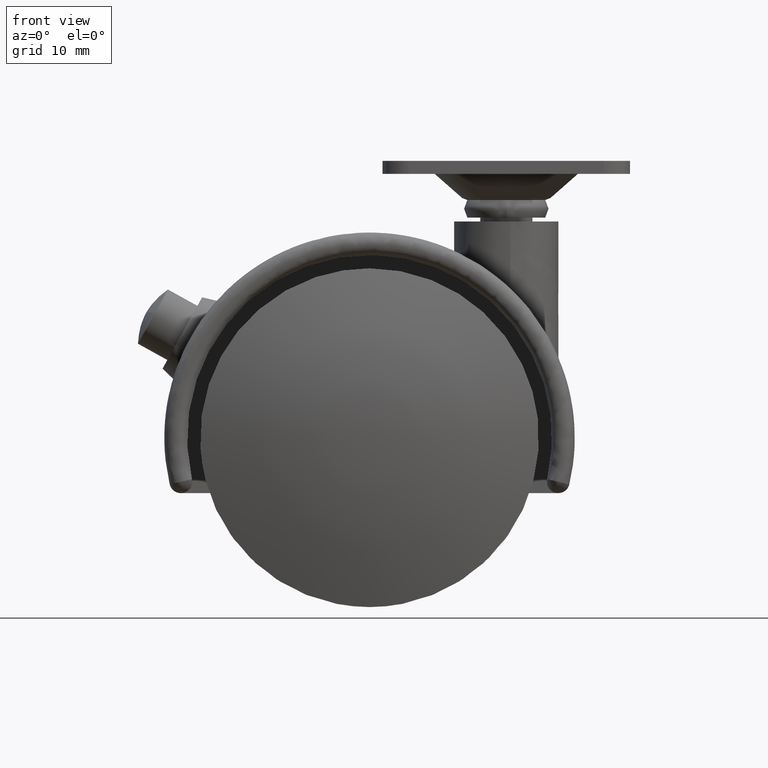
[diagram: clean part render]
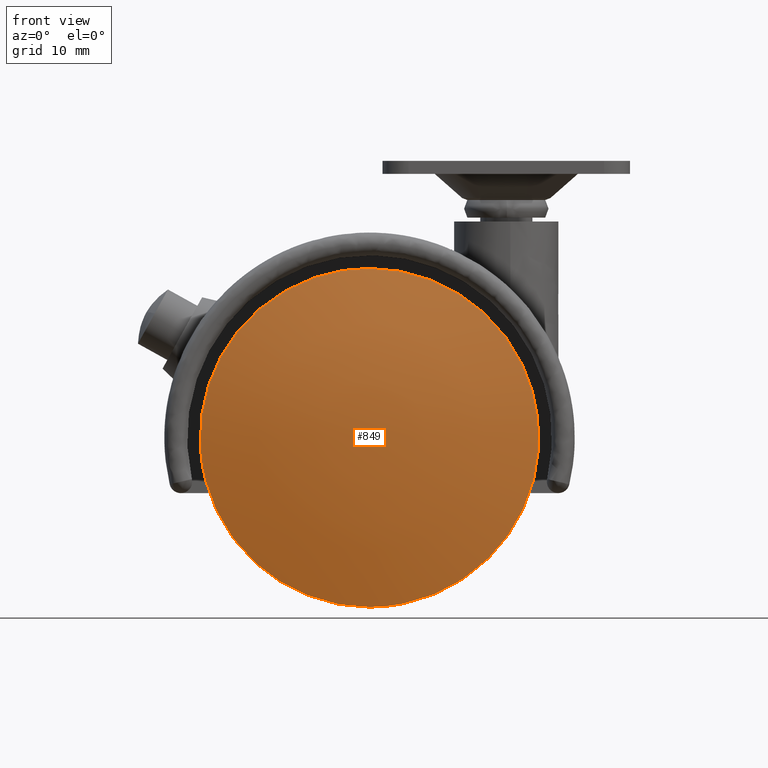
[diagram: same view with one face highlighted and labeled with its STEP entity id]
A machine part, front view. The second image highlights one B-rep face of the part: STEP entity #849.
In plain terms, the highlighted face is a freeform B-spline surface patch.
Its self-contained STEP definition (entity closure, byte-faithful):
#252=CARTESIAN_POINT('',(25.818250716227940,-19.100000010721399,3.068864603291616));
#253=VERTEX_POINT('',#252);
#254=CARTESIAN_POINT('',(0.0,-19.100000010721249,-26.0));
#255=VERTEX_POINT('',#254);
#256=CARTESIAN_POINT('',(25.818250716227940,-19.100000010721402,3.068864603291616));
#257=CARTESIAN_POINT('',(26.000000000000004,-19.100000010721246,1.539814227279839));
#258=CARTESIAN_POINT('',(26.0,-19.100000010721249,0.0));
#259=CARTESIAN_POINT('',(26.000000000000007,-19.100000010721242,-26.000000000000007));
#260=CARTESIAN_POINT('',(0.0,-19.100000010721249,-26.0));
#268=(BOUNDED_CURVE()B_SPLINE_CURVE(2,(#256,#257,#258,#259,#260),.UNSPECIFIED.,.F.,.U.)B_SPLINE_CURVE_WITH_KNOTS((3,2,3),(0.229562640421186,0.250000000000000,0.500000000000000),.UNSPECIFIED.)CURVE()GEOMETRIC_REPRESENTATION_ITEM()RATIONAL_B_SPLINE_CURVE((0.956027081329839,0.976056143875653,1.0,0.707106781186547,1.0))REPRESENTATION_ITEM(''));
#269=EDGE_CURVE('',#253,#255,#268,.T.);
#271=CARTESIAN_POINT('',(-25.951505815537288,-19.100000010721072,-1.587244752971166));
#272=VERTEX_POINT('',#271);
#273=CARTESIAN_POINT('',(0.0,-19.100000010721249,-26.0));
#274=CARTESIAN_POINT('',(-24.458374050980229,-19.100000010721249,-26.0));
#275=CARTESIAN_POINT('',(-25.951505815537292,-19.100000010721072,-1.587244752971166));
#283=(BOUNDED_CURVE()B_SPLINE_CURVE(2,(#273,#274,#275),.UNSPECIFIED.,.F.,.U.)B_SPLINE_CURVE_WITH_KNOTS((3,3),(0.500000000000000,0.739333077099850),.UNSPECIFIED.)CURVE()GEOMETRIC_REPRESENTATION_ITEM()RATIONAL_B_SPLINE_CURVE((1.0,0.719603858718787,0.976072287835629))REPRESENTATION_ITEM(''));
#284=EDGE_CURVE('',#255,#272,#283,.T.);
#351=CARTESIAN_POINT('',(0.0,-19.100000010721249,26.0));
#352=VERTEX_POINT('',#351);
#353=CARTESIAN_POINT('',(0.0,-19.100000010721249,26.0));
#354=CARTESIAN_POINT('',(23.092560641195718,-19.100000010721246,26.0));
#355=CARTESIAN_POINT('',(25.818250716227936,-19.100000010721409,3.068864603291616));
#363=(BOUNDED_CURVE()B_SPLINE_CURVE(2,(#353,#354,#355),.UNSPECIFIED.,.F.,.U.)B_SPLINE_CURVE_WITH_KNOTS((3,3),(0.0,0.229562640421186),.UNSPECIFIED.)CURVE()GEOMETRIC_REPRESENTATION_ITEM()RATIONAL_B_SPLINE_CURVE((1.0,0.731050637310895,0.956027081329839))REPRESENTATION_ITEM(''));
#364=EDGE_CURVE('',#352,#253,#363,.T.);
#398=CARTESIAN_POINT('',(-25.951505815537292,-19.100000010721072,-1.587244752971166));
#399=CARTESIAN_POINT('',(-25.999999999999996,-19.100000010721246,-0.794363184077576));
#400=CARTESIAN_POINT('',(-26.0,-19.100000010721249,0.0));
#401=CARTESIAN_POINT('',(-26.000000000000007,-19.100000010721242,26.000000000000007));
#402=CARTESIAN_POINT('',(0.0,-19.100000010721249,26.0));
#410=(BOUNDED_CURVE()B_SPLINE_CURVE(2,(#398,#399,#400,#401,#402),.UNSPECIFIED.,.F.,.U.)B_SPLINE_CURVE_WITH_KNOTS((3,2,3),(0.739333077099850,0.750000000000000,1.0),.UNSPECIFIED.)CURVE()GEOMETRIC_REPRESENTATION_ITEM()RATIONAL_B_SPLINE_CURVE((0.976072287835629,0.987502922467760,1.0,0.707106781186547,1.0))REPRESENTATION_ITEM(''));
#411=EDGE_CURVE('',#272,#352,#410,.T.);
#819=CARTESIAN_POINT('',(-27.509549926636083,-13.258914040041132,-27.510158300489543));
#820=CARTESIAN_POINT('',(-14.215357172331229,-18.207877278112218,-28.431343090072275));
#821=CARTESIAN_POINT('',(14.215437443623905,-18.207877278112218,-28.431343090072275));
#822=CARTESIAN_POINT('',(27.509695201312631,-13.258859959194144,-27.510148234047090));
#823=CARTESIAN_POINT('',(-28.430756452596867,-18.208103503328065,-14.215692599468955));
#824=CARTESIAN_POINT('',(-14.707876000288019,-23.499999999999972,-14.708201265049620));
#825=CARTESIAN_POINT('',(14.707959052736490,-23.499999999999972,-14.708201265049620));
#826=CARTESIAN_POINT('',(28.430906243680862,-18.208045739849442,-14.215687223510853));
#827=CARTESIAN_POINT('',(-28.430756452596867,-18.208103503328065,14.215694394626185));
#828=CARTESIAN_POINT('',(-14.707876000288019,-23.499999999999972,14.708203122400830));
#829=CARTESIAN_POINT('',(14.707959052736490,-23.499999999999972,14.708203122400830));
#830=CARTESIAN_POINT('',(28.430906243680862,-18.208045739849442,14.215689018667407));
#831=CARTESIAN_POINT('',(-27.509549701514796,-13.258912830575211,27.510161549345206));
#832=CARTESIAN_POINT('',(-14.215357052106134,-18.207875986291597,28.431346439925878));
#833=CARTESIAN_POINT('',(14.215437323398129,-18.207875986291597,28.431346439925878));
#834=CARTESIAN_POINT('',(27.509694976190243,-13.258858749729098,27.510151482901648));
#842=(BOUNDED_SURFACE()B_SPLINE_SURFACE(2,2,((#819,#823,#827,#831),(#820,#824,#828,#832),(#821,#825,#829,#833),(#822,#826,#830,#834)),.UNSPECIFIED.,.F.,.F.,.U.)B_SPLINE_SURFACE_WITH_KNOTS((3,1,3),(3,1,3),(14.714415427684781,42.997826829478001,71.281397942066192),(14.713789939880369,42.997826829477987,71.281867290782927),.UNSPECIFIED.)GEOMETRIC_REPRESENTATION_ITEM()RATIONAL_B_SPLINE_SURFACE(((1.069292375884866,1.034645421750261,1.034645421750261,1.069292384635299),(1.034646954134605,1.0,1.0,1.034646962885038),(1.034646954134605,1.0,1.0,1.034646962885038),(1.069292767157573,1.034645813022969,1.034645813022969,1.069292775908006)))REPRESENTATION_ITEM('')SURFACE());
#843=ORIENTED_EDGE('',*,*,#411,.F.);
#844=ORIENTED_EDGE('',*,*,#284,.F.);
#845=ORIENTED_EDGE('',*,*,#269,.F.);
#846=ORIENTED_EDGE('',*,*,#364,.F.);
#847=EDGE_LOOP('',(#843,#844,#845,#846));
#848=FACE_OUTER_BOUND('',#847,.T.);
#849=ADVANCED_FACE('',(#848),#842,.T.);